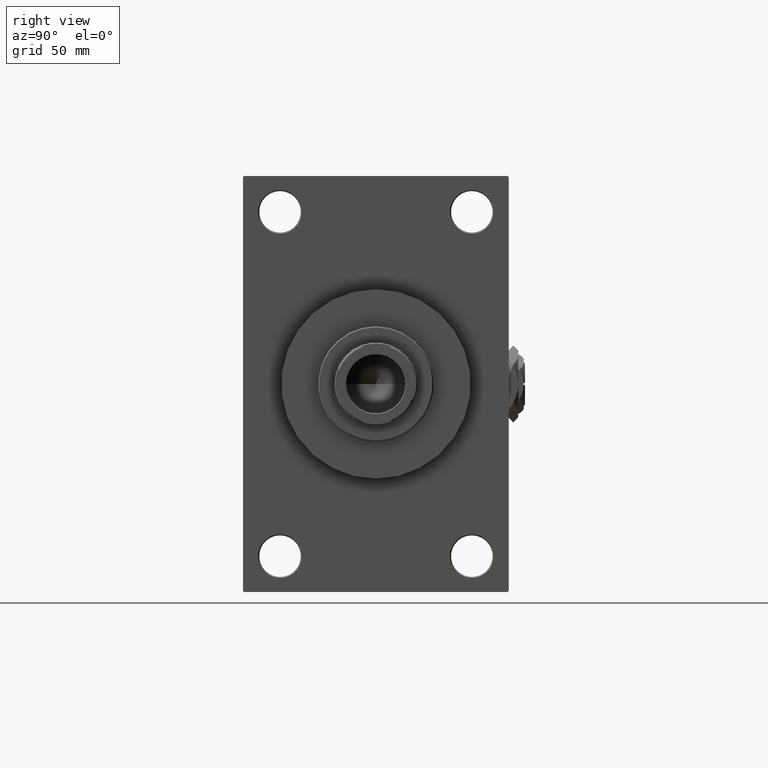
[diagram: clean part render]
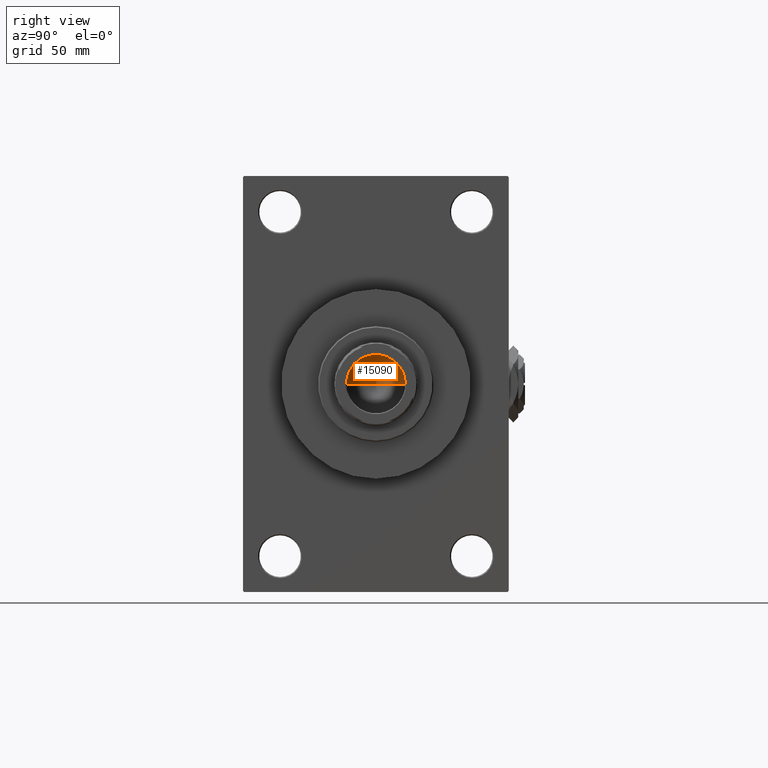
[diagram: same view with one face highlighted and labeled with its STEP entity id]
A machine part, right view. The second image highlights one B-rep face of the part: STEP entity #15090.
In plain terms, the highlighted conical surface has half-angle 59 deg.
Its self-contained STEP definition (entity closure, byte-faithful):
#1946 = VECTOR ( 'NONE', #3071, 1000.000000000000000 ) ;
#2795 = CARTESIAN_POINT ( 'NONE',  ( 0.000000000000000000, 0.000000000000000000, 121.0000000000000142 ) ) ;
#3071 = DIRECTION ( 'NONE',  ( -0.8571673007021117785, 1.049727191138617956E-16, 0.5150380749100550437 ) ) ;
#4473 = ORIENTED_EDGE ( 'NONE', *, *, #28758, .T. ) ;
#6022 = CARTESIAN_POINT ( 'NONE',  ( 0.000000000000000000, 0.000000000000000000, 121.0000000000000142 ) ) ;
#8481 = VERTEX_POINT ( 'NONE', #39165 ) ;
#10339 = CARTESIAN_POINT ( 'NONE',  ( 12.74999999999998934, 0.000000000000000000, 121.0000000000000142 ) ) ;
#10581 = LINE ( 'NONE', #10339, #21390 ) ;
#10724 = EDGE_LOOP ( 'NONE', ( #21330, #4473, #46059 ) ) ;
#14154 = CIRCLE ( 'NONE', #43939, 12.74999999999998934 ) ;
#15090 = ADVANCED_FACE ( 'NONE', ( #16623 ), #27847, .F. ) ;
#16623 = FACE_OUTER_BOUND ( 'NONE', #10724, .T. ) ;
#18150 = DIRECTION ( 'NONE',  ( -0.000000000000000000, -0.000000000000000000, 1.000000000000000000 ) ) ;
#18628 = VERTEX_POINT ( 'NONE', #28633 ) ;
#19424 = CARTESIAN_POINT ( 'NONE',  ( -12.74999999999998934, 1.561424668912873928E-15, 121.0000000000000142 ) ) ;
#21330 = ORIENTED_EDGE ( 'NONE', *, *, #33074, .F. ) ;
#21390 = VECTOR ( 'NONE', #41571, 1000.000000000000000 ) ;
#24606 = AXIS2_PLACEMENT_3D ( 'NONE', #6022, #39576, #24700 ) ;
#24700 = DIRECTION ( 'NONE',  ( 1.000000000000000000, 0.000000000000000000, 0.000000000000000000 ) ) ;
#27847 = CONICAL_SURFACE ( 'NONE', #24606, 12.74999999999998934, 1.029744258676653423 ) ;
#28633 = CARTESIAN_POINT ( 'NONE',  ( -1.410643066818227497E-14, 0.000000000000000000, 113.3390271073986071 ) ) ;
#28758 = EDGE_CURVE ( 'NONE', #18628, #8481, #38582, .T. ) ;
#33074 = EDGE_CURVE ( 'NONE', #18628, #40904, #10581, .T. ) ;
#33190 = CARTESIAN_POINT ( 'NONE',  ( 12.74999999999998934, 0.000000000000000000, 121.0000000000000142 ) ) ;
#33527 = DIRECTION ( 'NONE',  ( 1.000000000000000000, 0.000000000000000000, 0.000000000000000000 ) ) ;
#34387 = EDGE_CURVE ( 'NONE', #8481, #40904, #14154, .T. ) ;
#38582 = LINE ( 'NONE', #19424, #1946 ) ;
#39165 = CARTESIAN_POINT ( 'NONE',  ( -12.74999999999998934, 1.561424668912873928E-15, 121.0000000000000142 ) ) ;
#39576 = DIRECTION ( 'NONE',  ( -0.000000000000000000, -0.000000000000000000, 1.000000000000000000 ) ) ;
#40904 = VERTEX_POINT ( 'NONE', #33190 ) ;
#41571 = DIRECTION ( 'NONE',  ( 0.8571673007021117785, 0.000000000000000000, 0.5150380749100550437 ) ) ;
#43939 = AXIS2_PLACEMENT_3D ( 'NONE', #2795, #18150, #33527 ) ;
#46059 = ORIENTED_EDGE ( 'NONE', *, *, #34387, .T. ) ;